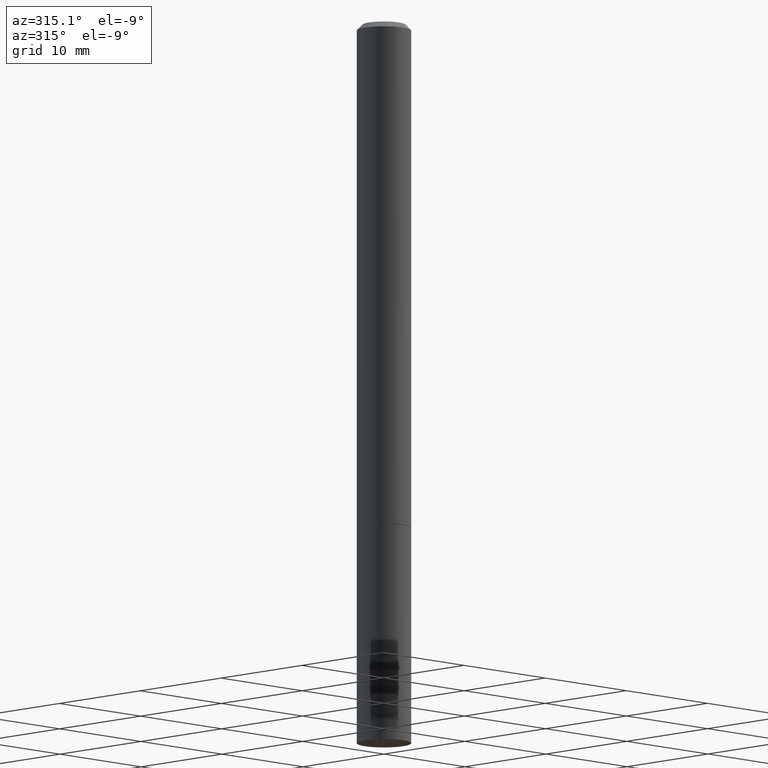
[diagram: clean part render]
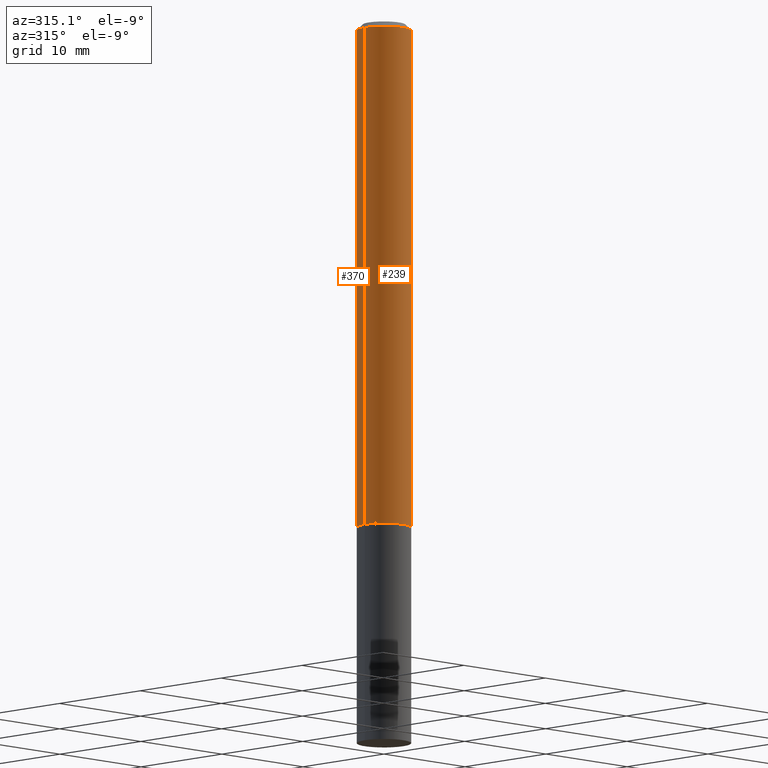
[diagram: same view with one multi-face feature highlighted, each face labeled with its STEP entity id]
A machine part, auxiliary view. The highlighted faces form ONE feature: a constant-radius fillet chain: 2 tangent blend faces with common blend radius 2.3812 mm. The faces share edges in the B-rep.
Their STEP definitions:
[1] entity #370 (Cylinder):
#14 = DIRECTION ( 'NONE',  ( -2.445468806185136877E-29, 3.491481338843145188E-15, 1.000000000000000000 ) ) ;
#17 = CARTESIAN_POINT ( 'NONE',  ( -0.09374999999999988898, 6.661338147750931354E-16, -4.611501647113968390E-30 ) ) ;
#26 = VERTEX_POINT ( 'NONE', #362 ) ;
#42 = LINE ( 'NONE', #17, #155 ) ;
#44 = CARTESIAN_POINT ( 'NONE',  ( 0.09374999999999988898, -6.546527510330866166E-16, 4.571415727308684201E-30 ) ) ;
#50 = VERTEX_POINT ( 'NONE', #295 ) ;
#55 = ORIENTED_EDGE ( 'NONE', *, *, #347, .T. ) ;
#71 = EDGE_CURVE ( 'NONE', #296, #292, #299, .T. ) ;
#82 = EDGE_LOOP ( 'NONE', ( #270, #55, #90, #201 ) ) ;
#87 = DIRECTION ( 'NONE',  ( -2.445468806185136597E-29, 3.491481338843145583E-15, 1.000000000000000000 ) ) ;
#90 = ORIENTED_EDGE ( 'NONE', *, *, #71, .F. ) ;
#91 = DIRECTION ( 'NONE',  ( -2.445468806185136597E-29, 3.491481338843145583E-15, 1.000000000000000000 ) ) ;
#101 = DIRECTION ( 'NONE',  ( 1.000000000000000000, -6.982962677686261189E-15, 0.000000000000000000 ) ) ;
#110 = CARTESIAN_POINT ( 'NONE',  ( 0.000000000000000000, 0.000000000000000000, 0.000000000000000000 ) ) ;
#155 = VECTOR ( 'NONE', #14, 39.37007874015748143 ) ;
#189 = CARTESIAN_POINT ( 'NONE',  ( -0.09374999999999979183, 5.848231242562231212E-16, -0.02000000000000002123 ) ) ;
#190 = LINE ( 'NONE', #44, #335 ) ;
#199 = AXIS2_PLACEMENT_3D ( 'NONE', #110, #258, #279 ) ;
#201 = ORIENTED_EDGE ( 'NONE', *, *, #326, .F. ) ;
#208 = DIRECTION ( 'NONE',  ( 1.000000000000000000, -6.982962677686266711E-15, 0.000000000000000000 ) ) ;
#210 = FACE_OUTER_BOUND ( 'NONE', #82, .T. ) ;
#230 = AXIS2_PLACEMENT_3D ( 'NONE', #358, #91, #101 ) ;
#234 = CARTESIAN_POINT ( 'NONE',  ( 4.890937612370278413E-31, -6.982962677686297772E-17, -0.02000000000000002123 ) ) ;
#246 = CIRCLE ( 'NONE', #230, 0.09375000000000001388 ) ;
#258 = DIRECTION ( 'NONE',  ( -2.445468806185136597E-29, 3.491481338843145583E-15, 1.000000000000000000 ) ) ;
#270 = ORIENTED_EDGE ( 'NONE', *, *, #361, .T. ) ;
#273 = DIRECTION ( 'NONE',  ( -2.445468806185136877E-29, 3.491481338843145188E-15, 1.000000000000000000 ) ) ;
#276 = AXIS2_PLACEMENT_3D ( 'NONE', #234, #87, #208 ) ;
#279 = DIRECTION ( 'NONE',  ( 1.000000000000000000, -6.982962677686265133E-15, 4.876176775795935793E-29 ) ) ;
#292 = VERTEX_POINT ( 'NONE', #189 ) ;
#295 = CARTESIAN_POINT ( 'NONE',  ( -0.09375000000000001388, -2.422081429431664218E-15, -1.749000000000000110 ) ) ;
#296 = VERTEX_POINT ( 'NONE', #364 ) ;
#298 = CYLINDRICAL_SURFACE ( 'NONE', #199, 0.09374999999999988898 ) ;
#299 = CIRCLE ( 'NONE', #276, 0.09374999999999979183 ) ;
#326 = EDGE_CURVE ( 'NONE', #26, #296, #190, .T. ) ;
#335 = VECTOR ( 'NONE', #273, 39.37007874015748143 ) ;
#347 = EDGE_CURVE ( 'NONE', #50, #292, #42, .T. ) ;
#358 = CARTESIAN_POINT ( 'NONE',  ( 4.277124942017804562E-29, -6.106600861636661664E-15, -1.749000000000000110 ) ) ;
#361 = EDGE_CURVE ( 'NONE', #26, #50, #246, .T. ) ;
#362 = CARTESIAN_POINT ( 'NONE',  ( 0.09375000000000001388, -6.761253612669749168E-15, -1.749000000000000110 ) ) ;
#364 = CARTESIAN_POINT ( 'NONE',  ( 0.09374999999999979183, -7.130013140679426072E-16, -0.02000000000000002123 ) ) ;
#370 = ADVANCED_FACE ( 'NONE', ( #210 ), #298, .T. ) ;
[2] entity #239 (Cylinder):
#14 = DIRECTION ( 'NONE',  ( -2.445468806185136877E-29, 3.491481338843145188E-15, 1.000000000000000000 ) ) ;
#17 = CARTESIAN_POINT ( 'NONE',  ( -0.09374999999999988898, 6.661338147750931354E-16, -4.611501647113968390E-30 ) ) ;
#26 = VERTEX_POINT ( 'NONE', #362 ) ;
#42 = LINE ( 'NONE', #17, #155 ) ;
#44 = CARTESIAN_POINT ( 'NONE',  ( 0.09374999999999988898, -6.546527510330866166E-16, 4.571415727308684201E-30 ) ) ;
#50 = VERTEX_POINT ( 'NONE', #295 ) ;
#57 = DIRECTION ( 'NONE',  ( -2.445468806185136597E-29, 3.491481338843145583E-15, 1.000000000000000000 ) ) ;
#58 = ORIENTED_EDGE ( 'NONE', *, *, #122, .T. ) ;
#73 = CARTESIAN_POINT ( 'NONE',  ( 0.000000000000000000, 0.000000000000000000, 0.000000000000000000 ) ) ;
#88 = CIRCLE ( 'NONE', #355, 0.09375000000000001388 ) ;
#116 = ORIENTED_EDGE ( 'NONE', *, *, #326, .T. ) ;
#122 = EDGE_CURVE ( 'NONE', #50, #26, #88, .T. ) ;
#155 = VECTOR ( 'NONE', #14, 39.37007874015748143 ) ;
#156 = DIRECTION ( 'NONE',  ( -2.445468806185136597E-29, 3.491481338843145583E-15, 1.000000000000000000 ) ) ;
#175 = DIRECTION ( 'NONE',  ( 1.000000000000000000, -6.982962677686261189E-15, 0.000000000000000000 ) ) ;
#176 = ORIENTED_EDGE ( 'NONE', *, *, #347, .F. ) ;
#189 = CARTESIAN_POINT ( 'NONE',  ( -0.09374999999999979183, 5.848231242562231212E-16, -0.02000000000000002123 ) ) ;
#190 = LINE ( 'NONE', #44, #335 ) ;
#202 = AXIS2_PLACEMENT_3D ( 'NONE', #73, #215, #368 ) ;
#207 = AXIS2_PLACEMENT_3D ( 'NONE', #334, #156, #277 ) ;
#215 = DIRECTION ( 'NONE',  ( -2.445468806185136597E-29, 3.491481338843145583E-15, 1.000000000000000000 ) ) ;
#229 = EDGE_CURVE ( 'NONE', #292, #296, #307, .T. ) ;
#239 = ADVANCED_FACE ( 'NONE', ( #243 ), #332, .T. ) ;
#243 = FACE_OUTER_BOUND ( 'NONE', #329, .T. ) ;
#264 = CARTESIAN_POINT ( 'NONE',  ( 4.277124942017804562E-29, -6.106600861636661664E-15, -1.749000000000000110 ) ) ;
#273 = DIRECTION ( 'NONE',  ( -2.445468806185136877E-29, 3.491481338843145188E-15, 1.000000000000000000 ) ) ;
#277 = DIRECTION ( 'NONE',  ( 1.000000000000000000, -6.982962677686266711E-15, 0.000000000000000000 ) ) ;
#292 = VERTEX_POINT ( 'NONE', #189 ) ;
#295 = CARTESIAN_POINT ( 'NONE',  ( -0.09375000000000001388, -2.422081429431664218E-15, -1.749000000000000110 ) ) ;
#296 = VERTEX_POINT ( 'NONE', #364 ) ;
#307 = CIRCLE ( 'NONE', #207, 0.09374999999999979183 ) ;
#326 = EDGE_CURVE ( 'NONE', #26, #296, #190, .T. ) ;
#329 = EDGE_LOOP ( 'NONE', ( #176, #58, #116, #352 ) ) ;
#332 = CYLINDRICAL_SURFACE ( 'NONE', #202, 0.09374999999999988898 ) ;
#334 = CARTESIAN_POINT ( 'NONE',  ( 4.890937612370278413E-31, -6.982962677686297772E-17, -0.02000000000000002123 ) ) ;
#335 = VECTOR ( 'NONE', #273, 39.37007874015748143 ) ;
#347 = EDGE_CURVE ( 'NONE', #50, #292, #42, .T. ) ;
#352 = ORIENTED_EDGE ( 'NONE', *, *, #229, .F. ) ;
#355 = AXIS2_PLACEMENT_3D ( 'NONE', #264, #57, #175 ) ;
#362 = CARTESIAN_POINT ( 'NONE',  ( 0.09375000000000001388, -6.761253612669749168E-15, -1.749000000000000110 ) ) ;
#364 = CARTESIAN_POINT ( 'NONE',  ( 0.09374999999999979183, -7.130013140679426072E-16, -0.02000000000000002123 ) ) ;
#368 = DIRECTION ( 'NONE',  ( 1.000000000000000000, -6.982962677686265133E-15, 4.876176775795935793E-29 ) ) ;